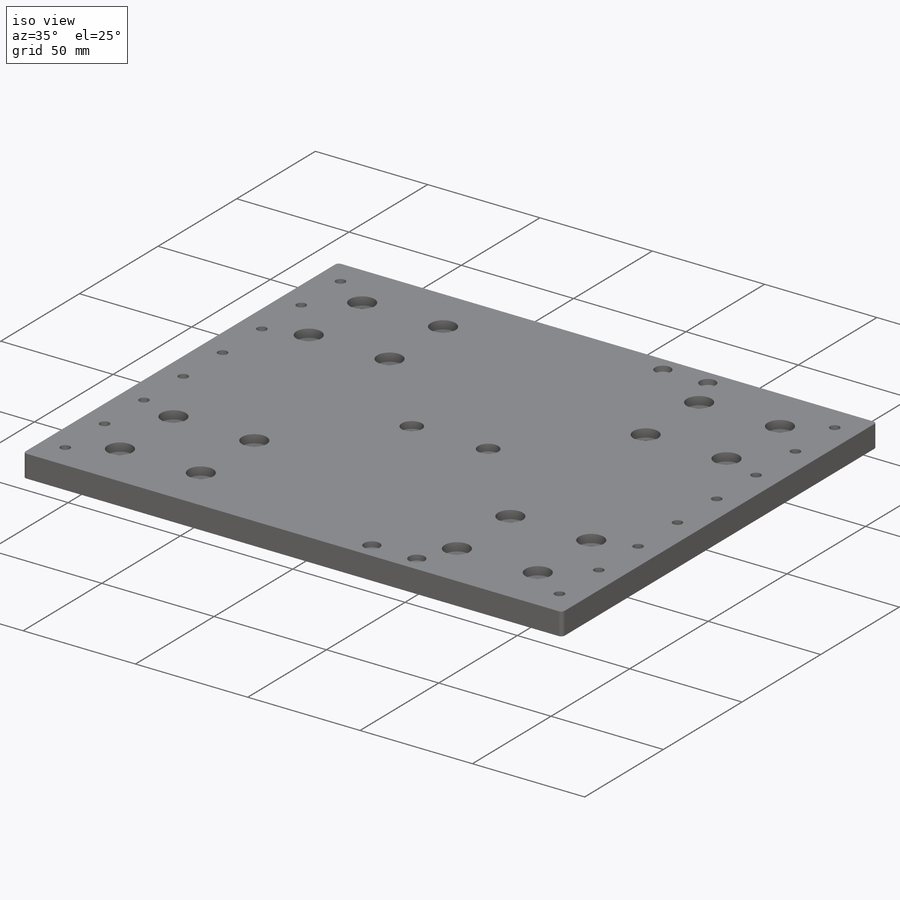
[diagram: iso view]
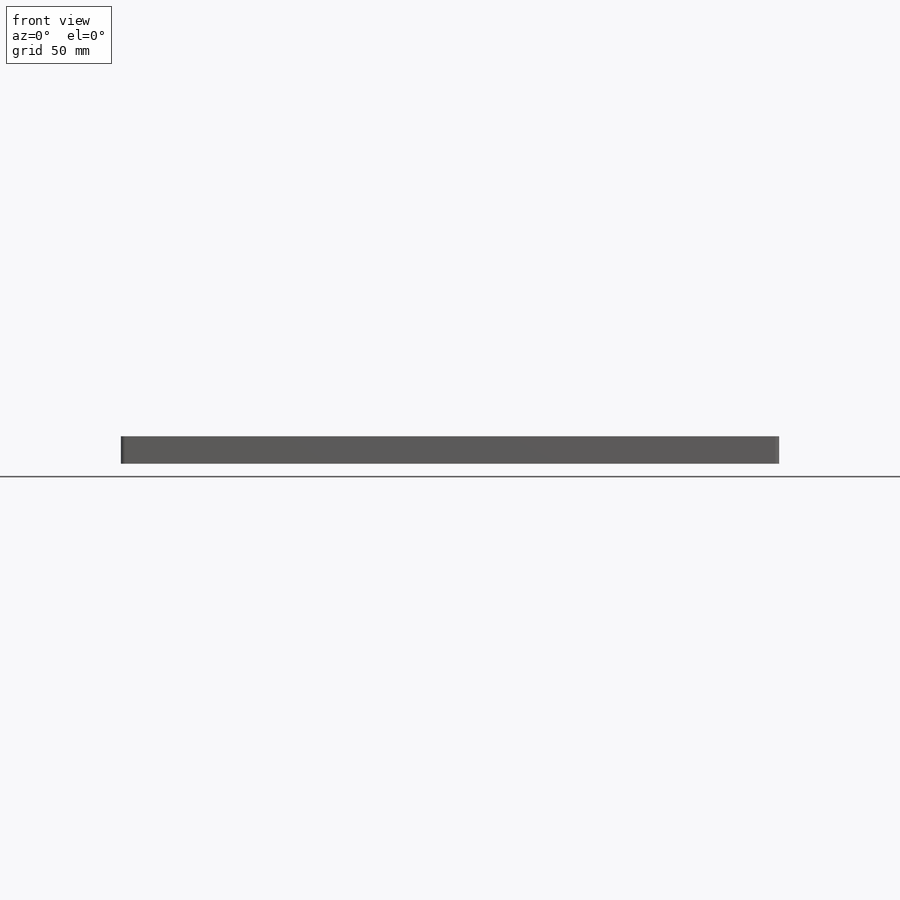
[diagram: front view]
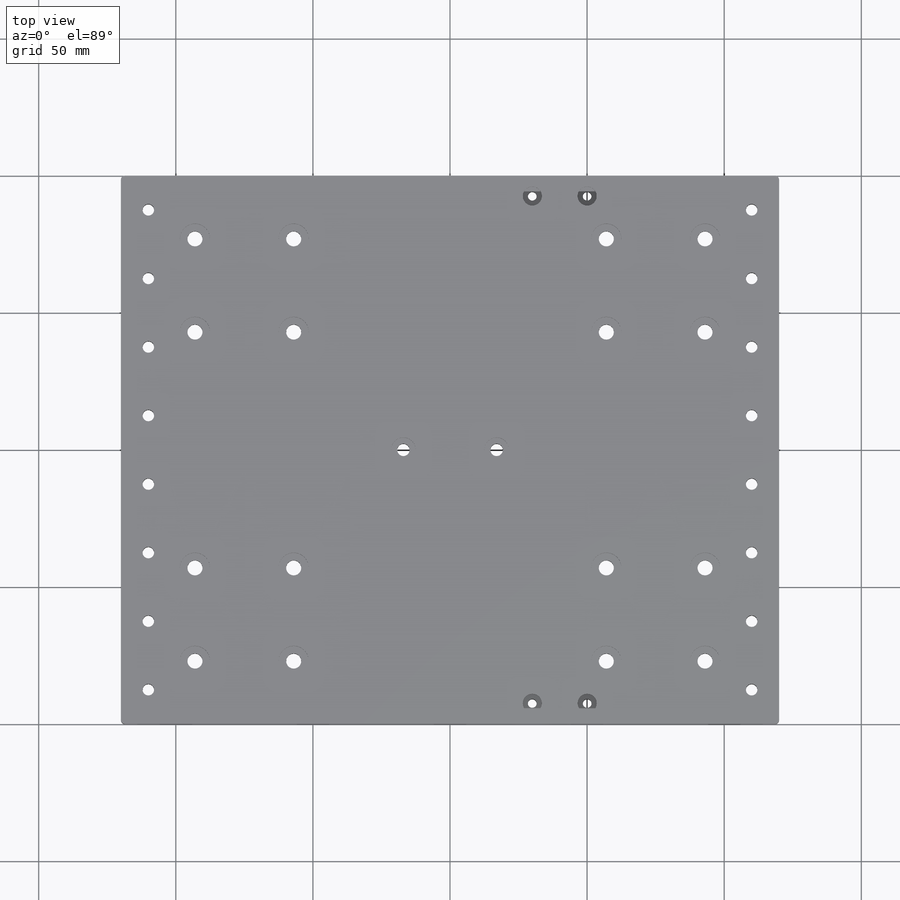
[diagram: top view]
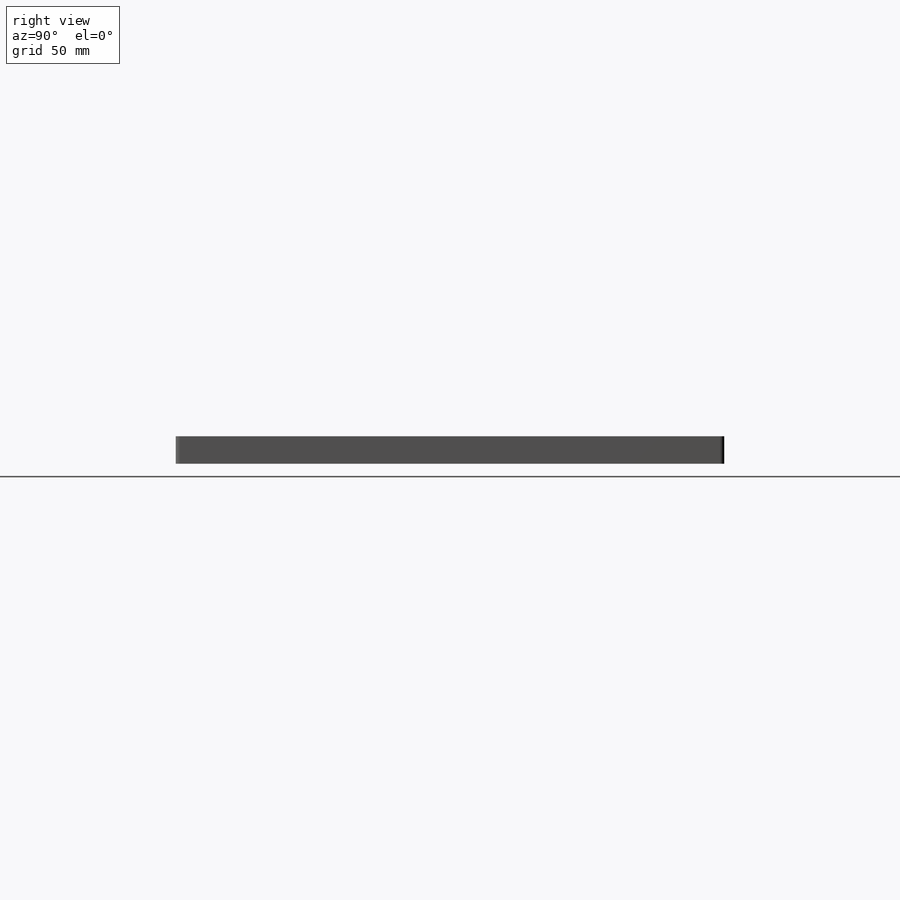
[diagram: right view]
SOLIDWORKS PART (.sldprt)
format: sldprt  version: not decoded by parser v0  size: 442,880 bytes
history: native  units: mm
features: sketch x9, hole x4, mirror x3, thread x2, material x1, extrude x1, fillet x1, pattern_linear x1 (+12 scaffold rows collapsed)
feature tree (34):
  scaffold x12  (default folders/planes/origin — collapsed)
  material  "Material <not specified>"
  sketch  "Sketch1"  dims[D1=240.0mm D2=200.0mm]
  extrude  "Boss-Extrude1"  Depth=10mm
  hole  "CBORE for M5 Pan Head Machine Screw1"  Diameter=5.5mm Depth=10mm
  sketch  "Sketch11"  dims[c1.D1=45.0mm c1.D2=40.0mm c1.D3=30.5mm c1.D4=34.0mm c2.D3=18.0mm c2.D5=17.0mm c2.D6=36.0mm]
  sketch  "Sketch10"  dims[hole-wizard template sketch: 42 standard entries collapsed; hole parameters kept: c12.Thru Hole Depth=10.0mm c12.C'Bore Dia.=11.0mm c12.C'Bore Depth=3.7mm]
  mirror  "Mirror1"
  mirror  "Mirror2"
  hole  "CBORE for M4 Pan Head Machine Screw1"  Diameter=4.5mm Depth=10mm
  sketch  "Sketch9"  dims[D1=17.0mm D2=17.0mm]
  sketch  "Sketch8"  dims[hole-wizard template sketch: 42 standard entries collapsed; hole parameters kept: c12.Thru Hole Depth=10.0mm c12.C'Bore Dia.=9.0mm c12.C'Bore Depth=3.1mm]
  hole  "M5x0.8 Tapped Hole1"  Diameter=4.2mm Depth=10mm
  sketch  "Sketch7"  dims[D1=12.5mm D2=10.0mm D3=10.0mm D4=12.5mm]
  sketch  "Sketch5"  dims[hole-wizard template sketch: 60 standard entries collapsed; hole parameters kept: c18.Thru Tap Drill Depth=10.0mm]
  thread  "Hole Thread1"  Diameter=5mm  [1 undecoded]
  thread  "Hole Thread2"  Diameter=5mm  [1 undecoded]
  fillet  "Fillet1"  Radius=1.5mm
  pattern_linear  "LPattern2"  Count1=8 Count2=1 Spacing1=25mm Spacing2=10mm
  hole  "CBORE for M3 Pan Head Machine Screw1"  Diameter=3.2mm Depth=10mm
  sketch  "Sketch13"  dims[D1=50.0mm D2=20.0mm D3=7.5mm D4=7.5mm]
  sketch  "Sketch12"  dims[hole-wizard template sketch: 42 standard entries collapsed; hole parameters kept: c12.Thru Hole Depth=10.0mm c12.C'Bore Dia.=7.0mm c12.C'Bore Depth=2.4mm]
  mirror  "Mirror3"
decode coverage: 18 of 21 modeling features carry decoded parameters
note: ~ marks probable driven/reference dimensions
note: 2 parameter values undecoded
summary: Diameter pulled from absorbed wizard sketch
note: suppression state not decoded; provenance and decode notes live in map.json
